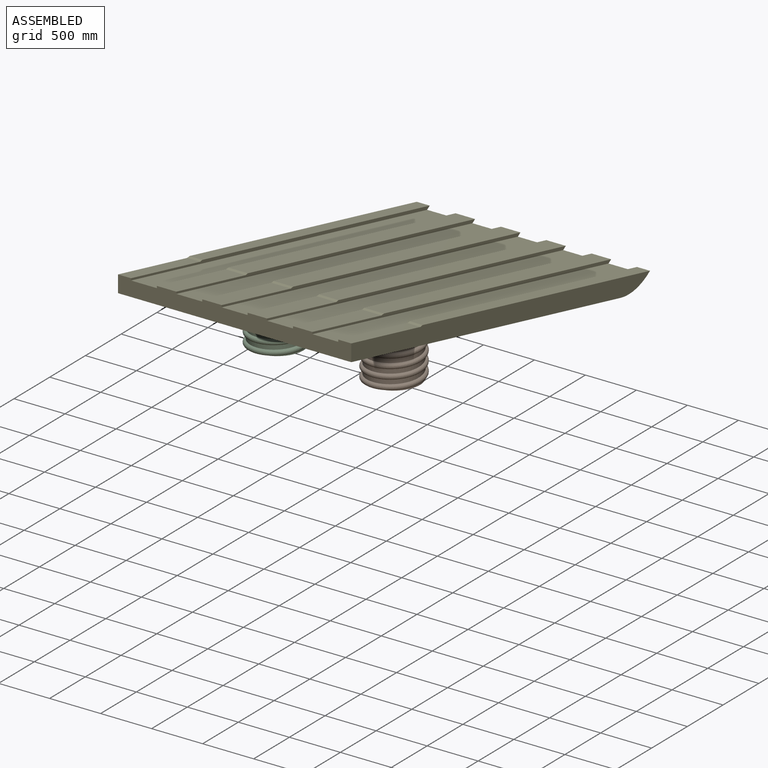
[diagram: assembled view]
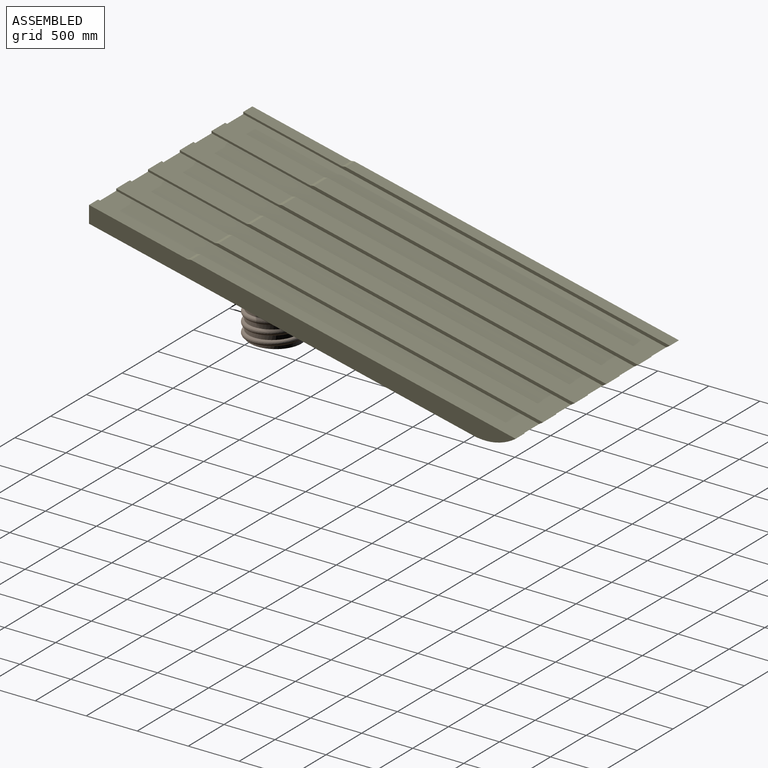
[diagram: assembled view, second angle]
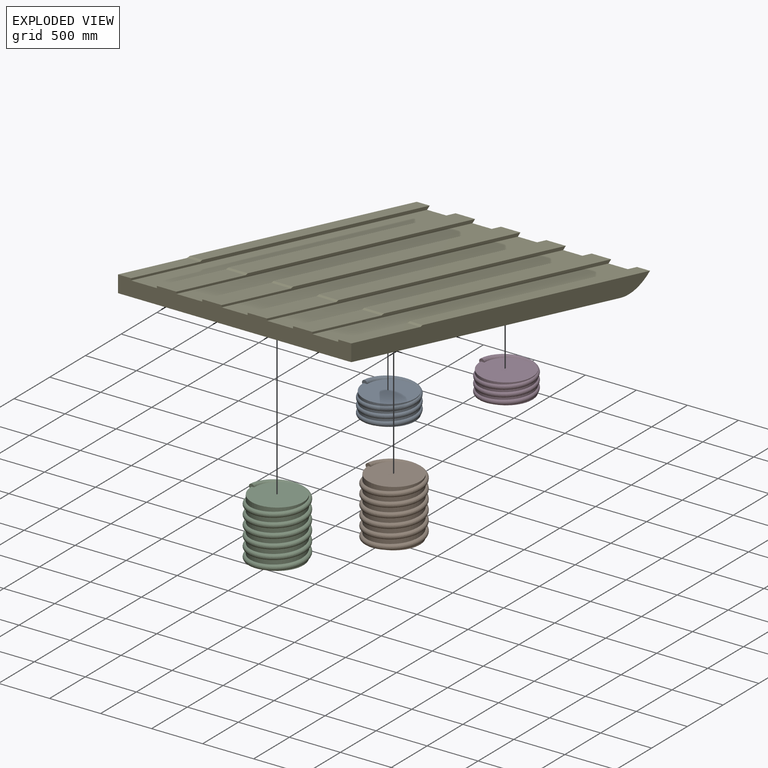
[diagram: exploded view]
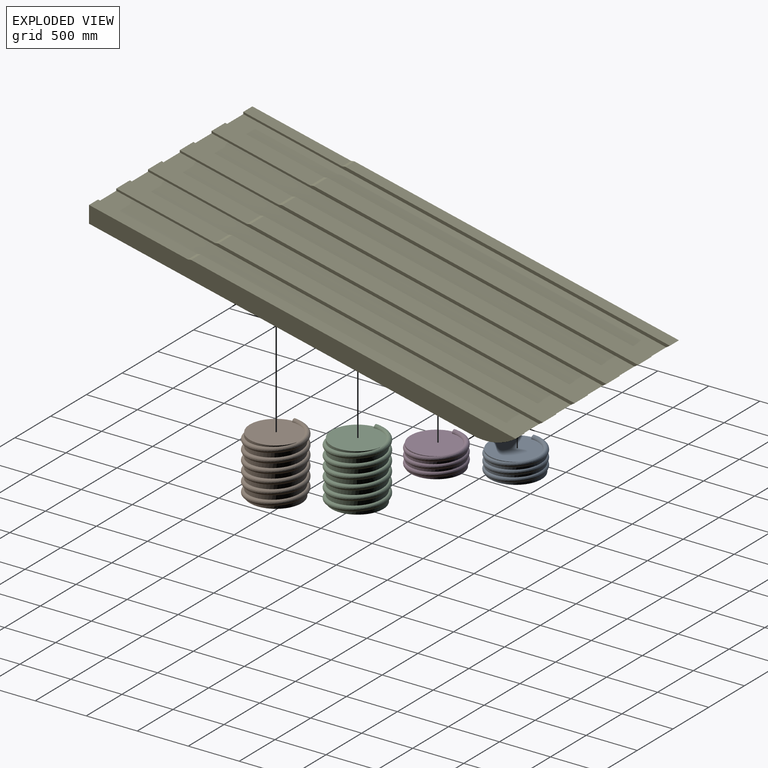
[diagram: exploded view, second angle]
ASSEMBLY  parts=5 mates=4
PART A: 6 faces, bbox 536.2x254x536.5 mm
  f0: plane 50.8x48.29mm, normal (0,0,-1), area 1365.2mm2, adj f2,f3,f4
  f1: plane 50.6x48.29mm, normal (0,0,1), area 1133.6mm2, adj f2,f4,f5
  f2: bspline ~536.49x536.22mm, area 324063.2mm2, adj f0,f1,f3,f4,f5
  f3: plane 508x475.76mm, normal (0,-1,0), area 182686.7mm2, adj f0,f2,f4
  f4: cylinder r=254mm len=508mm, axis (0,1,0), area 116686.2mm2, adj f0,f1,f2,f3,f5
  f5: plane 508x499.68mm, normal (0,1,0), area 188783.6mm2, adj f1,f2,f4
PART B: 6 faces, bbox 558x612.1x558 mm
  f0: plane 508x505.58mm, normal (0,1,0), area 194380.8mm2, adj f1,f4,f5
  f1: cylinder r=254mm len=561.34mm, axis (0,1,0), area 413704.1mm2, adj f0,f2,f3,f4,f5
  f2: plane 508x505.81mm, normal (0,-1,0), area 194425.2mm2, adj f1,f3,f5
  f3: plane 50.8x50.8mm, normal (0,0,-1), area 1518.7mm2, adj f1,f2,f5
  f4: plane 50.8x50.8mm, normal (0,0,1), area 1521.5mm2, adj f0,f1,f5
  f5: bspline ~611.69x558.01mm, area 834420mm2, adj f0,f1,f2,f3,f4
PART C: same geometry as B
PART D: same geometry as A
PART E: 46 faces, bbox 2286x4181.3x1048.9 mm
  f0: plane 3766.88x2286mm, normal (0,-0.22,-0.97), area 8007785.7mm2, adj f6,f18,f19,f37,f38,f39,f40,f41
  f1: plane 3181.06x734.4mm, normal (0,0.22,0.97), area 414620.9mm2, adj f13,f18,f35,f37
  f2: plane 3181.06x734.4mm, normal (0,0.22,0.97), area 621931.4mm2, adj f12,f31,f34,f37
  f3: plane 3181.06x734.4mm, normal (0,0.22,0.97), area 621931.4mm2, adj f14,f28,f32,f37
  f4: plane 3181.06x734.4mm, normal (0,0.22,0.97), area 621931.4mm2, adj f21,f26,f29,f37
  f5: plane 3181.06x734.4mm, normal (0,0.22,0.97), area 621931.4mm2, adj f15,f23,f25,f37
  f6: plane 2286x166.07mm, normal (0,-1,0), area 354212.5mm2, adj f0,f7,f8,f9,f10,f11,f18,f19
  f7: plane 968.7x223.64mm, normal (0,0.22,0.97), area 189391.2mm2, adj f6,f12,f31,f34
  f8: plane 968.7x223.64mm, normal (0,0.22,0.97), area 126260.8mm2, adj f6,f13,f18,f35
  f9: plane 968.7x223.64mm, normal (0,0.22,0.97), area 189391.2mm2, adj f6,f14,f28,f32
  f10: plane 968.7x223.64mm, normal (0,0.22,0.97), area 189391.2mm2, adj f6,f15,f23,f25
  f11: plane 968.7x223.64mm, normal (0,0.22,0.97), area 126260.8mm2, adj f6,f16,f19,f22
  f12: plane 190.5x31.52mm, normal (0,-0.14,0.99), area 6064.5mm2, adj f2,f7,f31,f34
  f13: plane 127x31.52mm, normal (0,-0.14,0.99), area 4043mm2, adj f1,f8,f18,f35
  f14: plane 190.5x31.52mm, normal (0,-0.14,0.99), area 6064.5mm2, adj f3,f9,f28,f32
  f15: plane 190.5x31.52mm, normal (0,-0.14,0.99), area 6064.5mm2, adj f5,f10,f23,f25
  f16: plane 127x31.52mm, normal (0,-0.14,0.99), area 4043mm2, adj f11,f17,f19,f22
  f17: plane 3181.06x734.4mm, normal (0,0.22,0.97), area 414620.9mm2, adj f16,f19,f22,f37
  f18: plane 4181.28x1048.93mm, normal (1,0,0), area 707920.7mm2, adj f0,f1,f6,f8,f13,f37
  f19: plane 4181.28x1048.93mm, normal (-1,0,0), area 707920.7mm2, adj f0,f6,f11,f16,f17,f37
  f20: plane 968.7x223.64mm, normal (0,0.22,0.97), area 189391.2mm2, adj f6,f21,f26,f29
  f21: plane 190.5x31.52mm, normal (0,-0.14,0.99), area 6064.5mm2, adj f4,f20,f26,f29
  f22: plane 4181.28x977.03mm, normal (1,0,0), area 120650.4mm2, adj f6,f11,f16,f17,f24,f37
  f23: plane 4181.28x977.03mm, normal (-1,0,0), area 120650.4mm2, adj f5,f6,f10,f15,f24,f37
  f24: plane 4145.24x957mm, normal (0,0.22,0.97), area 1080585.8mm2, adj f6,f22,f23,f37
  f25: plane 4181.28x977.03mm, normal (1,0,0), area 120650.4mm2, adj f5,f6,f10,f15,f27,f37
  f26: plane 4181.28x977.03mm, normal (-1,0,0), area 120650.4mm2, adj f4,f6,f20,f21,f27,f37
  f27: plane 4145.24x957mm, normal (0,0.22,0.97), area 1080585.8mm2, adj f6,f25,f26,f37
  f28: plane 4181.28x977.03mm, normal (-1,0,0), area 120650.4mm2, adj f3,f6,f9,f14,f30,f37
  f29: plane 4181.28x977.03mm, normal (1,0,0), area 120650.4mm2, adj f4,f6,f20,f21,f30,f37
  f30: plane 4145.24x957mm, normal (0,0.22,0.97), area 1080585.8mm2, adj f6,f28,f29,f37
  f31: plane 4181.28x977.03mm, normal (-1,0,0), area 120650.4mm2, adj f2,f6,f7,f12,f33,f37
  f32: plane 4181.28x977.03mm, normal (1,0,0), area 120650.4mm2, adj f3,f6,f9,f14,f33,f37
  f33: plane 4145.24x957mm, normal (0,0.22,0.97), area 1080585.8mm2, adj f6,f31,f32,f37
  f34: plane 4181.28x977.03mm, normal (1,0,0), area 120650.4mm2, adj f2,f6,f7,f12,f36,f37
  f35: plane 4181.28x977.03mm, normal (-1,0,0), area 120650.4mm2, adj f1,f6,f8,f13,f36,f37
  f36: plane 4145.24x957mm, normal (0,0.22,0.97), area 1080585.8mm2, adj f6,f34,f35,f37
  f37: cylinder r=515.1mm len=2286mm, axis (1,0,0), area 940486.8mm2, adj f0,f1,f2,f3,f4,f5,f17,f18
  f38: cylinder r=254mm len=508mm, axis (0,0,-1), area 89760.8mm2, adj f0,f39
  f39: plane 508x496.92mm, normal (0,0,-1), area 201582.6mm2, adj f0,f38
  f40: cylinder r=254mm len=508mm, axis (0,0,-1), area 89760.8mm2, adj f0,f41
  f41: plane 508x496.92mm, normal (0,0,-1), area 201582.6mm2, adj f0,f40
  f42: cylinder r=254mm len=508mm, axis (0,0,-1), area 93723.8mm2, adj f0,f43
  f43: plane 508x508mm, normal (0,0,-1), area 202683mm2, adj f42
  f44: cylinder r=254mm len=508mm, axis (0,0,-1), area 93723.8mm2, adj f0,f45
  f45: plane 508x508mm, normal (0,0,-1), area 202683mm2, adj f44
PLACE A rot(axis=(-1,0,0),90deg) t=(-1407.61,123.66,-901.01)mm
PLACE B rot(axis=(-1,0,0),90deg) t=(-271.57,-1432.87,-901.01)mm
PLACE C rot(axis=(-1,0,0),90deg) t=(-1414.57,-1432.87,-901.01)mm
PLACE D rot(axis=(-1,0,0),90deg) t=(-271.81,141.72,-901.01)mm
PLACE E t=(-836.11,-657.7,668.38)mm
MATE fastened C.f2 <-> E.f38  axis (0,0,1) through (-1407.61,-1439.06,-339.67)mm
MATE fastened D.f3 <-> E.f44  axis (0,0,1) through (-264.61,123.66,-697.81)mm
MATE fastened A.f4 <-> E.f42  axis (0,0,1) through (-1407.61,123.66,-697.81)mm
MATE fastened B.f2 <-> E.f40  axis (0,0,1) through (-264.61,-1439.06,-339.67)mm
